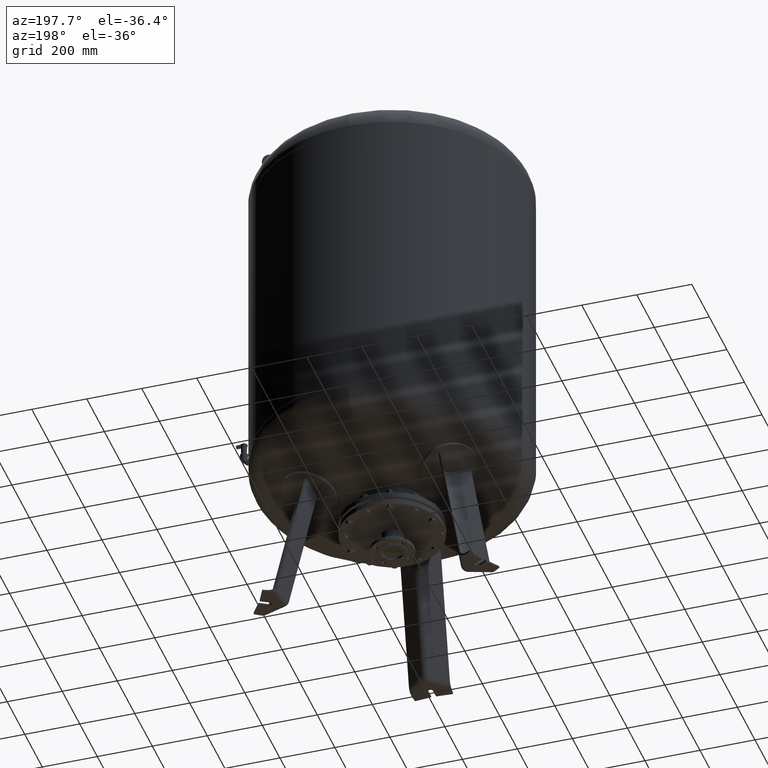
[diagram: clean part render]
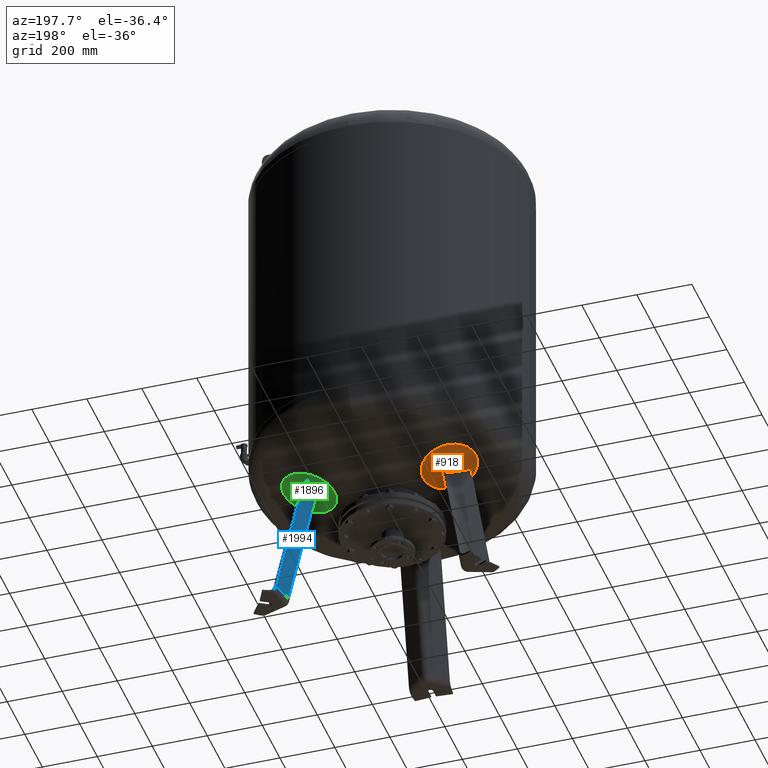
[diagram: same view with three faces highlighted in distinct colors, each labeled with its STEP entity id]
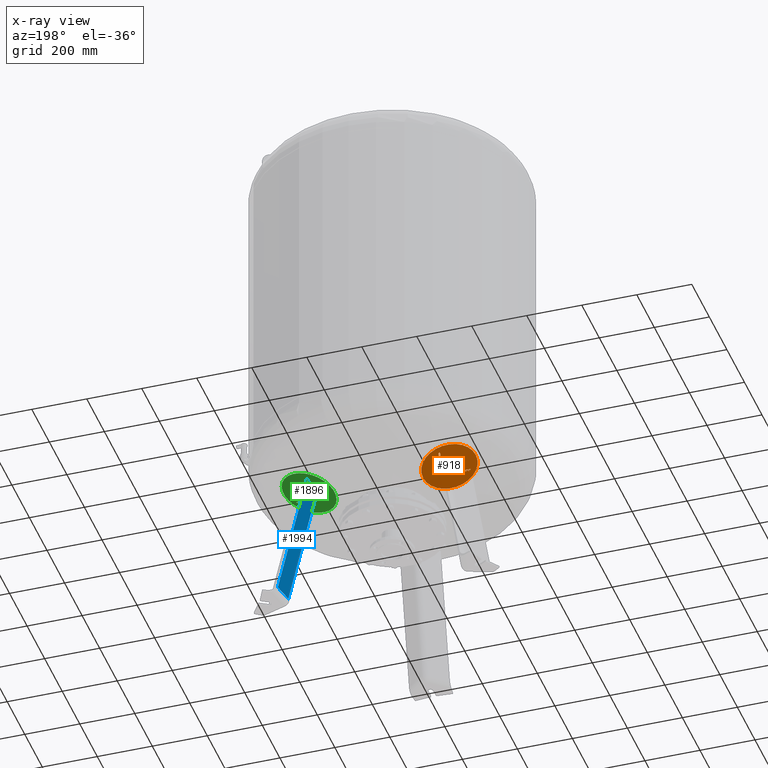
[diagram: x-ray of the same camera — body ghosted, the three highlighted faces saturated]
A machine part, auxiliary view with three faces highlighted in distinct colors.
The next image is the same camera in x-ray (body ghosted, the three faces saturated) — at least one of them is partly hidden behind the body in this view.
Their STEP definitions:

[orange] entity #918 — the highlighted spherical surface has radius 1006 mm.
#130=CARTESIAN_POINT('',(-172.796675749824520,99.764207259233771,469.158360530759300));
#131=VERTEX_POINT('',#130);
#140=CARTESIAN_POINT('',(-337.524496459090810,194.869858888749210,530.961759405748920));
#141=VERTEX_POINT('',#140);
#142=CARTESIAN_POINT('',(-255.160586104457740,147.317033073991520,500.060059968254170));
#143=DIRECTION('',(-0.267616567329818,0.154508497187474,-0.951056516295154));
#144=DIRECTION('',(0.823639103546332,-0.475528258147577,-0.309016994374948));
#145=AXIS2_PLACEMENT_3D('',#142,#143,#144);
#146=CIRCLE('',#145,100.0);
#147=EDGE_CURVE('',#141,#131,#146,.T.);
#767=CARTESIAN_POINT('',(12.728276363151110,-7.348673784585259,1452.084259496684100));
#768=DIRECTION('',(-0.500000000000000,-0.866025403784438,-1.922271E-017));
#769=DIRECTION('',(0.823639103546332,-0.475528258147577,-0.309016994374948));
#770=AXIS2_PLACEMENT_3D('',#767,#768,#769);
#771=SPHERICAL_SURFACE('',#770,1006.0);
#772=CARTESIAN_POINT('',(-255.160586104457740,147.317033073991520,500.060059968254170));
#773=DIRECTION('',(-0.267616567329818,0.154508497187474,-0.951056516295154));
#774=DIRECTION('',(0.823639103546332,-0.475528258147577,-0.309016994374948));
#775=AXIS2_PLACEMENT_3D('',#772,#773,#774);
#776=CIRCLE('',#775,100.0);
#777=EDGE_CURVE('',#131,#141,#776,.T.);
#778=ORIENTED_EDGE('',*,*,#777,.T.);
#779=ORIENTED_EDGE('',*,*,#147,.T.);
#780=EDGE_LOOP('',(#778,#779));
#781=FACE_OUTER_BOUND('',#780,.T.);
#782=CARTESIAN_POINT('',(-245.347396508302840,225.757308699770080,508.106215259451630));
#783=VERTEX_POINT('',#782);
#784=CARTESIAN_POINT('',(-239.084562163770500,222.906025895211830,505.718015578199410));
#785=VERTEX_POINT('',#784);
#786=CARTESIAN_POINT('',(48.462833693314167,69.785539066318478,1453.703955797395800));
#787=DIRECTION('',(-0.420282416002408,-0.907193365623647,-0.019049623818306));
#788=DIRECTION('',(0.009563295541659,0.016564113765950,-0.999817070025078));
#789=AXIS2_PLACEMENT_3D('',#786,#787,#788);
#790=CIRCLE('',#789,1002.400484439319300);
#791=EDGE_CURVE('',#783,#785,#790,.T.);
#792=ORIENTED_EDGE('',*,*,#791,.F.);
#793=CARTESIAN_POINT('',(-234.534818756953200,154.041509200619970,490.392952149244080));
#794=VERTEX_POINT('',#793);
#795=CARTESIAN_POINT('',(-42.678741161069638,-17.943416016653828,1461.157558058853700));
#796=DIRECTION('',(0.969740897595359,0.185430570007244,-0.158802063077708));
#797=DIRECTION('',(0.180056805991956,-0.103955845408880,0.978147600733806));
#798=AXIS2_PLACEMENT_3D('',#795,#796,#797);
#799=CIRCLE('',#798,1004.376169121564000);
#800=EDGE_CURVE('',#794,#783,#799,.T.);
#801=ORIENTED_EDGE('',*,*,#800,.F.);
#802=CARTESIAN_POINT('',(-250.671269583507720,126.092356515190720,490.392952149244080));
#803=VERTEX_POINT('',#802);
#804=CARTESIAN_POINT('',(-250.671269583507720,126.092356515190720,490.392952149244080));
#805=CARTESIAN_POINT('',(-250.574512849431670,126.129635010904860,490.371623892671440));
#806=CARTESIAN_POINT('',(-250.477803760298120,126.167593311050540,490.350420493468330));
#807=CARTESIAN_POINT('',(-249.646487369690620,126.499951411326890,490.169148601515130));
#808=CARTESIAN_POINT('',(-248.915641114720190,126.833074850677970,490.016489016976440));
#809=CARTESIAN_POINT('',(-247.476615436054400,127.576101824324410,489.730169035990510));
#810=CARTESIAN_POINT('',(-246.768360453599570,127.986039684162510,489.596492822823280));
#811=CARTESIAN_POINT('',(-245.388021940892060,128.877791467814290,489.351162059827520));
#812=CARTESIAN_POINT('',(-244.715937417979970,129.359603697571540,489.239506937421310));
#813=CARTESIAN_POINT('',(-243.419980240353990,130.387381409492890,489.040364541220580));
#814=CARTESIAN_POINT('',(-242.795522354690630,130.933811219726380,488.952787360993230));
#815=CARTESIAN_POINT('',(-241.604085802151560,132.081845711851540,488.802955942629920));
#816=CARTESIAN_POINT('',(-241.037108603185230,132.683452004905400,488.740702376916890));
#817=CARTESIAN_POINT('',(-239.968940744643450,133.929592684317130,488.641866930361120));
#818=CARTESIAN_POINT('',(-239.467698051638340,134.574194484351320,488.605281330539300));
#819=CARTESIAN_POINT('',(-238.536808190789320,135.892067462273190,488.557093949216380));
#820=CARTESIAN_POINT('',(-238.107165363452170,136.565341769891430,488.545493912186370));
#821=CARTESIAN_POINT('',(-237.714901647204130,137.244762456398800,488.545493912186370));
#822=CARTESIAN_POINT('',(-237.322637930956090,137.924183142906200,488.545493912186370));
#823=CARTESIAN_POINT('',(-236.954386690511880,138.632901899743080,488.557093949216380));
#824=CARTESIAN_POINT('',(-236.278520143095020,140.098012656324640,488.605281330539300));
#825=CARTESIAN_POINT('',(-235.970899955442750,140.854402461945480,488.641866930361120));
#826=CARTESIAN_POINT('',(-235.425794399653880,142.402533302654550,488.740702376916890));
#827=CARTESIAN_POINT('',(-235.188276666275870,143.194353106852840,488.802955942629920));
#828=CARTESIAN_POINT('',(-234.789767907944220,144.800184674411640,488.952787360993230));
#829=CARTESIAN_POINT('',(-234.628774753728610,145.614195972106390,489.040364541220580));
#830=CARTESIAN_POINT('',(-234.386671734574240,147.250416666107920,489.239506937421370));
#831=CARTESIAN_POINT('',(-234.305452365206490,148.073365051318770,489.351162059827520));
#832=CARTESIAN_POINT('',(-234.223341923047710,149.714649160971390,489.596492822823280));
#833=CARTESIAN_POINT('',(-234.222452813682340,150.532984898053170,489.730169035990630));
#834=CARTESIAN_POINT('',(-234.298485418140270,152.150731179299070,490.016489016976440));
#835=CARTESIAN_POINT('',(-234.375415184551600,152.950224322039820,490.169148601515020));
#836=CARTESIAN_POINT('',(-234.503242821862470,153.836344485026470,490.350420493468220));
#837=CARTESIAN_POINT('',(-234.518724514218490,153.939076163065810,490.371623892671440));
#838=CARTESIAN_POINT('',(-234.534818756953200,154.041509200619970,490.392952149244080));
#839=B_SPLINE_CURVE_WITH_KNOTS('',3,(#804,#805,#806,#807,#808,#809,#810,#811,#812,#813,#814,#815,#816,#817,#818,#819,#820,#821,#822,#823,#824,#825,#826,#827,#828,#829,#830,#831,#832,#833,#834,#835,#836,#837,#838),.UNSPECIFIED.,.F.,.U.,(4,2,2,2,2,2,2,2,3,2,2,2,2,2,2,2,4),(-16.784681571035506,-16.475076082417758,-14.121493784929527,-11.767911487441268,-9.414329189953008,-7.060746892464749,-4.707164594976490,-2.353582297488259,0.0,2.353582297488253,4.707164594976506,7.060746892464759,9.414329189953012,11.767911487441264,14.121493784929518,16.475076082417772,16.784681571035524),.UNSPECIFIED.);
#840=EDGE_CURVE('',#803,#794,#839,.T.);
#841=ORIENTED_EDGE('',*,*,#840,.F.);
#842=CARTESIAN_POINT('',(-318.185262678157870,99.598423778678864,508.106215259451630));
#843=VERTEX_POINT('',#842);
#844=CARTESIAN_POINT('',(-5.799916479440071,45.932582055353663,1461.157558058853700));
#845=DIRECTION('',(0.324282864533177,-0.932535537409927,-0.158802063077709));
#846=DIRECTION('',(0.180056805991956,-0.103955845408880,0.978147600733805));
#847=AXIS2_PLACEMENT_3D('',#844,#845,#846);
#848=CIRCLE('',#847,1004.376169121563900);
#849=EDGE_CURVE('',#843,#803,#848,.T.);
#850=ORIENTED_EDGE('',*,*,#849,.F.);
#851=CARTESIAN_POINT('',(-312.584562163770500,95.600291538899313,505.718015578199190));
#852=VERTEX_POINT('',#851);
#853=CARTESIAN_POINT('',(-36.204632801566220,-76.862814650949872,1453.703955797395800));
#854=DIRECTION('',(0.575511292773579,0.817571931833808,-0.019049623818306));
#855=DIRECTION('',(0.009563295541659,0.016564113765950,0.999817070025078));
#856=AXIS2_PLACEMENT_3D('',#853,#854,#855);
#857=CIRCLE('',#856,1002.400484439319300);
#858=EDGE_CURVE('',#852,#843,#857,.T.);
#859=ORIENTED_EDGE('',*,*,#858,.F.);
#860=CARTESIAN_POINT('',(-244.219129764969720,122.367211854108720,488.140371349142640));
#861=VERTEX_POINT('',#860);
#862=CARTESIAN_POINT('',(-3.878909333608021,40.408369625302470,1460.216836450315200));
#863=DIRECTION('',(-0.324282864533177,0.932535537409927,0.158802063077709));
#864=DIRECTION('',(-0.180056805991956,0.103955845408880,-0.978147600733805));
#865=AXIS2_PLACEMENT_3D('',#862,#863,#864);
#866=CIRCLE('',#865,1004.695639176399000);
#867=EDGE_CURVE('',#861,#852,#866,.T.);
#868=ORIENTED_EDGE('',*,*,#867,.F.);
#869=CARTESIAN_POINT('',(-228.082678938415260,150.316364539538030,488.140371349142640));
#870=VERTEX_POINT('',#869);
#871=CARTESIAN_POINT('',(-228.082678938415260,150.316364539538030,488.140371349142640));
#872=CARTESIAN_POINT('',(-228.066640468310600,150.214835707756720,488.119758337632730));
#873=CARTESIAN_POINT('',(-228.051203789349130,150.113014788072230,488.099264993121150));
#874=CARTESIAN_POINT('',(-227.922557904223480,149.227132373110580,487.922527930590210));
#875=CARTESIAN_POINT('',(-227.844838707869400,148.426996874095830,487.773524823873860));
#876=CARTESIAN_POINT('',(-227.767358921597320,146.808052609605110,487.494072222439000));
#877=CARTESIAN_POINT('',(-227.767590168543590,145.989161230529420,487.363607291874300));
#878=CARTESIAN_POINT('',(-227.848518487504580,144.346861174114850,487.124177053163460));
#879=CARTESIAN_POINT('',(-227.929213570494680,143.523452480935130,487.015211181380040));
#880=CARTESIAN_POINT('',(-228.170400469165880,141.886410818826680,486.820870060878350));
#881=CARTESIAN_POINT('',(-228.331001211407230,141.072039463819290,486.735407184319850));
#882=CARTESIAN_POINT('',(-228.728852706424080,139.465588881136090,486.589196233214520));
#883=CARTESIAN_POINT('',(-228.966105582964870,138.673510119873440,486.528448813028320));
#884=CARTESIAN_POINT('',(-229.510802448659630,137.124959111482840,486.432006304194660));
#885=CARTESIAN_POINT('',(-229.818278733375050,136.368408226318990,486.396307595334520));
#886=CARTESIAN_POINT('',(-230.493968779616270,134.903066767972970,486.349288981572390));
#887=CARTESIAN_POINT('',(-230.862187432638820,134.194278395694820,486.337970779564160));
#888=CARTESIAN_POINT('',(-231.254467641075540,133.514829143878730,486.337970779564160));
#889=CARTESIAN_POINT('',(-231.646747849512250,132.835379892062630,486.337970779564160));
#890=CARTESIAN_POINT('',(-232.076467259300870,132.162098998258730,486.349288981572390));
#891=CARTESIAN_POINT('',(-233.007645164326450,130.844263523956560,486.396307595334520));
#892=CARTESIAN_POINT('',(-233.509099307776350,130.199705807749870,486.432006304194540));
#893=CARTESIAN_POINT('',(-234.577835387251130,128.953708980501060,486.528448813028210));
#894=CARTESIAN_POINT('',(-235.145169278032310,128.352202581664470,486.589196233214520));
#895=CARTESIAN_POINT('',(-236.337470545051870,127.204427788704680,486.735407184319850));
#896=CARTESIAN_POINT('',(-236.962436455481850,126.658157788553310,486.820870060878290));
#897=CARTESIAN_POINT('',(-238.259562672585700,125.630762976189810,487.015211181379980));
#898=CARTESIAN_POINT('',(-238.932307977081340,125.149174637770130,487.124177053163520));
#899=CARTESIAN_POINT('',(-240.314117387092380,124.257938629457090,487.363607291874360));
#900=CARTESIAN_POINT('',(-241.023182500838860,123.848292674189210,487.494072222438890));
#901=CARTESIAN_POINT('',(-242.463969254335010,123.105920005135220,487.773524823873860));
#902=CARTESIAN_POINT('',(-243.195766521128580,122.773159054032190,487.922527930590210));
#903=CARTESIAN_POINT('',(-244.027286139814070,122.441628451162520,488.099264993121150));
#904=CARTESIAN_POINT('',(-244.123183982378270,122.404086547450870,488.119758337632730));
#905=CARTESIAN_POINT('',(-244.219129764969720,122.367211854108720,488.140371349142640));
#906=B_SPLINE_CURVE_WITH_KNOTS('',3,(#871,#872,#873,#874,#875,#876,#877,#878,#879,#880,#881,#882,#883,#884,#885,#886,#887,#888,#889,#890,#891,#892,#893,#894,#895,#896,#897,#898,#899,#900,#901,#902,#903,#904,#905),.UNSPECIFIED.,.F.,.U.,(4,2,2,2,2,2,2,2,3,2,2,2,2,2,2,2,4),(-16.782365627384145,-16.475768754341857,-14.122087503721616,-11.768406253101347,-9.414725002481077,-7.061043751860808,-4.707362501240539,-2.353681250620269,0.0,2.353681250620262,4.707362501240525,7.061043751860787,9.414725002481049,11.768406253101311,14.122087503721573,16.475768754341836,16.782365627384028),.UNSPECIFIED.);
#907=EDGE_CURVE('',#870,#861,#906,.T.);
#908=ORIENTED_EDGE('',*,*,#907,.F.);
#909=CARTESIAN_POINT('',(-36.934129287827545,-16.844950790770213,1460.216836450315200));
#910=DIRECTION('',(-0.969740897595359,-0.185430570007244,0.158802063077709));
#911=DIRECTION('',(-0.180056805991956,0.103955845408880,-0.978147600733806));
#912=AXIS2_PLACEMENT_3D('',#909,#910,#911);
#913=CIRCLE('',#912,1004.695639176398800);
#914=EDGE_CURVE('',#785,#870,#913,.T.);
#915=ORIENTED_EDGE('',*,*,#914,.F.);
#916=EDGE_LOOP('',(#792,#801,#841,#850,#859,#868,#908,#915));
#917=FACE_BOUND('',#916,.T.);
#918=ADVANCED_FACE('',(#781,#917),#771,.T.);

[blue] entity #1994 — the highlighted planar face has unit normal (-0.9697, 0.1854, -0.1588).
#1226=CARTESIAN_POINT('',(314.068076985219480,199.960057248237320,21.029948423057281));
#1227=VERTEX_POINT('',#1226);
#1268=CARTESIAN_POINT('',(328.305642099864600,274.417840413704650,21.029948423057284));
#1269=VERTEX_POINT('',#1268);
#1270=CARTESIAN_POINT('',(314.068076985219480,199.960057248237320,21.029948423057281));
#1271=DIRECTION('',(0.187813845079448,0.982204642422582,4.686537E-017));
#1272=VECTOR('',#1271,75.806792138366532);
#1273=LINE('',#1270,#1272);
#1274=EDGE_CURVE('',#1227,#1269,#1273,.T.);
#1829=CARTESIAN_POINT('',(239.084562163770580,222.906025895211770,505.718015578199190));
#1830=VERTEX_POINT('',#1829);
#1838=CARTESIAN_POINT('',(228.082678938415280,150.316364539537890,488.140371349142640));
#1839=VERTEX_POINT('',#1838);
#1840=CARTESIAN_POINT('',(36.934129287827375,-16.844950790769985,1460.216836450315200));
#1841=DIRECTION('',(0.969740897595359,-0.185430570007245,0.158802063077709));
#1842=DIRECTION('',(0.180056805991956,0.103955845408880,-0.978147600733805));
#1843=AXIS2_PLACEMENT_3D('',#1840,#1841,#1842);
#1844=CIRCLE('',#1843,1004.695639176399000);
#1845=EDGE_CURVE('',#1839,#1830,#1844,.T.);
#1964=CARTESIAN_POINT('',(328.305642099864600,274.417840413704650,21.029948423057284));
#1965=DIRECTION('',(-0.180056805991956,-0.103955845408880,0.978147600733806));
#1966=VECTOR('',#1965,495.516286899369050);
#1967=LINE('',#1964,#1966);
#1968=EDGE_CURVE('',#1269,#1830,#1967,.T.);
#1978=CARTESIAN_POINT('',(322.721292264436040,186.323224962095940,-47.735293817669401));
#1979=DIRECTION('',(-0.969740897595359,0.185430570007245,-0.158802063077709));
#1980=DIRECTION('',(0.180056805991956,0.103955845408880,-0.978147600733806));
#1981=AXIS2_PLACEMENT_3D('',#1978,#1979,#1980);
#1982=PLANE('',#1981);
#1983=CARTESIAN_POINT('',(228.082678938415280,150.316364539537890,488.140371349142640));
#1984=DIRECTION('',(0.180056805991956,0.103955845408880,-0.978147600733805));
#1985=VECTOR('',#1984,477.545947641909610);
#1986=LINE('',#1983,#1985);
#1987=EDGE_CURVE('',#1839,#1227,#1986,.T.);
#1988=ORIENTED_EDGE('',*,*,#1987,.F.);
#1989=ORIENTED_EDGE('',*,*,#1845,.T.);
#1990=ORIENTED_EDGE('',*,*,#1968,.F.);
#1991=ORIENTED_EDGE('',*,*,#1274,.F.);
#1992=EDGE_LOOP('',(#1988,#1989,#1990,#1991));
#1993=FACE_OUTER_BOUND('',#1992,.T.);
#1994=ADVANCED_FACE('',(#1993),#1982,.T.);

[green] entity #1896 — the highlighted spherical surface has radius 1006 mm.
#1108=CARTESIAN_POINT('',(172.796675749824570,99.764207259233743,469.158360530759300));
#1109=VERTEX_POINT('',#1108);
#1118=CARTESIAN_POINT('',(337.524496459090980,194.869858888748980,530.961759405748920));
#1119=VERTEX_POINT('',#1118);
#1120=CARTESIAN_POINT('',(255.160586104457880,147.317033073991410,500.060059968254170));
#1121=DIRECTION('',(0.267616567329818,0.154508497187474,-0.951056516295153));
#1122=DIRECTION('',(-0.823639103546332,-0.475528258147576,-0.309016994374948));
#1123=AXIS2_PLACEMENT_3D('',#1120,#1121,#1122);
#1124=CIRCLE('',#1123,100.0);
#1125=EDGE_CURVE('',#1119,#1109,#1124,.T.);
#1745=CARTESIAN_POINT('',(-12.728276363151167,-7.348673784585060,1452.084259496684100));
#1746=DIRECTION('',(-0.499999999999999,0.866025403784439,-1.922271E-017));
#1747=DIRECTION('',(-0.823639103546332,-0.475528258147576,-0.309016994374948));
#1748=AXIS2_PLACEMENT_3D('',#1745,#1746,#1747);
#1749=SPHERICAL_SURFACE('',#1748,1006.0);
#1750=CARTESIAN_POINT('',(255.160586104457880,147.317033073991410,500.060059968254170));
#1751=DIRECTION('',(0.267616567329818,0.154508497187474,-0.951056516295153));
#1752=DIRECTION('',(-0.823639103546332,-0.475528258147576,-0.309016994374948));
#1753=AXIS2_PLACEMENT_3D('',#1750,#1751,#1752);
#1754=CIRCLE('',#1753,100.0);
#1755=EDGE_CURVE('',#1109,#1119,#1754,.T.);
#1756=ORIENTED_EDGE('',*,*,#1755,.T.);
#1757=ORIENTED_EDGE('',*,*,#1125,.T.);
#1758=EDGE_LOOP('',(#1756,#1757));
#1759=FACE_OUTER_BOUND('',#1758,.T.);
#1760=CARTESIAN_POINT('',(318.185262678157930,99.598423778678807,508.106215259451630));
#1761=VERTEX_POINT('',#1760);
#1762=CARTESIAN_POINT('',(312.584562163770560,95.600291538899285,505.718015578199410));
#1763=VERTEX_POINT('',#1762);
#1764=CARTESIAN_POINT('',(36.204632801566049,-76.862814650949616,1453.703955797395800));
#1765=DIRECTION('',(-0.575511292773578,0.817571931833809,-0.019049623818306));
#1766=DIRECTION('',(0.009563295541659,-0.016564113765950,-0.999817070025078));
#1767=AXIS2_PLACEMENT_3D('',#1764,#1765,#1766);
#1768=CIRCLE('',#1767,1002.400484439319300);
#1769=EDGE_CURVE('',#1761,#1763,#1768,.T.);
#1770=ORIENTED_EDGE('',*,*,#1769,.F.);
#1771=CARTESIAN_POINT('',(250.671269583507810,126.092356515190690,490.392952149244080));
#1772=VERTEX_POINT('',#1771);
#1773=CARTESIAN_POINT('',(5.799916479440014,45.932582055354004,1461.157558058853700));
#1774=DIRECTION('',(-0.324282864533177,-0.932535537409926,-0.158802063077708));
#1775=DIRECTION('',(-0.180056805991956,-0.103955845408880,0.978147600733806));
#1776=AXIS2_PLACEMENT_3D('',#1773,#1774,#1775);
#1777=CIRCLE('',#1776,1004.376169121564000);
#1778=EDGE_CURVE('',#1772,#1761,#1777,.T.);
#1779=ORIENTED_EDGE('',*,*,#1778,.F.);
#1780=CARTESIAN_POINT('',(234.534818756953290,154.041509200619940,490.392952149244080));
#1781=VERTEX_POINT('',#1780);
#1782=CARTESIAN_POINT('',(234.534818756953290,154.041509200619940,490.392952149244080));
#1783=CARTESIAN_POINT('',(234.518724514218580,153.939076163065810,490.371623892671440));
#1784=CARTESIAN_POINT('',(234.503242821862440,153.836344485026420,490.350420493468330));
#1785=CARTESIAN_POINT('',(234.375415184551540,152.950224322039790,490.169148601515130));
#1786=CARTESIAN_POINT('',(234.298485418140390,152.150731179299100,490.016489016976440));
#1787=CARTESIAN_POINT('',(234.222452813682390,150.532984898053170,489.730169035990510));
#1788=CARTESIAN_POINT('',(234.223341923047800,149.714649160971360,489.596492822823280));
#1789=CARTESIAN_POINT('',(234.305452365206550,148.073365051318720,489.351162059827520));
#1790=CARTESIAN_POINT('',(234.386671734574320,147.250416666107900,489.239506937421310));
#1791=CARTESIAN_POINT('',(234.628774753728690,145.614195972106360,489.040364541220580));
#1792=CARTESIAN_POINT('',(234.789767907944310,144.800184674411610,488.952787360993230));
#1793=CARTESIAN_POINT('',(235.188276666275930,143.194353106852820,488.802955942629920));
#1794=CARTESIAN_POINT('',(235.425794399653970,142.402533302654490,488.740702376916890));
#1795=CARTESIAN_POINT('',(235.970899955442830,140.854402461945430,488.641866930361120));
#1796=CARTESIAN_POINT('',(236.278520143095110,140.098012656324610,488.605281330539300));
#1797=CARTESIAN_POINT('',(236.954386690511970,138.632901899743050,488.557093949216380));
#1798=CARTESIAN_POINT('',(237.322637930956150,137.924183142906170,488.545493912186370));
#1799=CARTESIAN_POINT('',(237.714901647204190,137.244762456398800,488.545493912186370));
#1800=CARTESIAN_POINT('',(238.107165363452220,136.565341769891400,488.545493912186370));
#1801=CARTESIAN_POINT('',(238.536808190789400,135.892067462273160,488.557093949216380));
#1802=CARTESIAN_POINT('',(239.467698051638420,134.574194484351300,488.605281330539300));
#1803=CARTESIAN_POINT('',(239.968940744643530,133.929592684317070,488.641866930361120));
#1804=CARTESIAN_POINT('',(241.037108603185320,132.683452004905350,488.740702376916890));
#1805=CARTESIAN_POINT('',(241.604085802151620,132.081845711851510,488.802955942629920));
#1806=CARTESIAN_POINT('',(242.795522354690720,130.933811219726350,488.952787360993230));
#1807=CARTESIAN_POINT('',(243.419980240354080,130.387381409492860,489.040364541220580));
#1808=CARTESIAN_POINT('',(244.715937417980060,129.359603697571520,489.239506937421370));
#1809=CARTESIAN_POINT('',(245.388021940892120,128.877791467814230,489.351162059827520));
#1810=CARTESIAN_POINT('',(246.768360453599660,127.986039684162480,489.596492822823280));
#1811=CARTESIAN_POINT('',(247.476615436054460,127.576101824324410,489.730169035990630));
#1812=CARTESIAN_POINT('',(248.915641114720190,126.833074850677950,490.016489016976440));
#1813=CARTESIAN_POINT('',(249.646487369690790,126.499951411326980,490.169148601515020));
#1814=CARTESIAN_POINT('',(250.477803760298260,126.167593311050620,490.350420493468220));
#1815=CARTESIAN_POINT('',(250.574512849431760,126.129635010904830,490.371623892671440));
#1816=CARTESIAN_POINT('',(250.671269583507810,126.092356515190690,490.392952149244080));
#1817=B_SPLINE_CURVE_WITH_KNOTS('',3,(#1782,#1783,#1784,#1785,#1786,#1787,#1788,#1789,#1790,#1791,#1792,#1793,#1794,#1795,#1796,#1797,#1798,#1799,#1800,#1801,#1802,#1803,#1804,#1805,#1806,#1807,#1808,#1809,#1810,#1811,#1812,#1813,#1814,#1815,#1816),.UNSPECIFIED.,.F.,.U.,(4,2,2,2,2,2,2,2,3,2,2,2,2,2,2,2,4),(-16.784681571035506,-16.475076082417758,-14.121493784929527,-11.767911487441268,-9.414329189953008,-7.060746892464749,-4.707164594976490,-2.353582297488259,0.0,2.353582297488253,4.707164594976506,7.060746892464759,9.414329189953012,11.767911487441264,14.121493784929518,16.475076082417772,16.784681571035524),.UNSPECIFIED.);
#1818=EDGE_CURVE('',#1781,#1772,#1817,.T.);
#1819=ORIENTED_EDGE('',*,*,#1818,.F.);
#1820=CARTESIAN_POINT('',(245.347396508302920,225.757308699770020,508.106215259451630));
#1821=VERTEX_POINT('',#1820);
#1822=CARTESIAN_POINT('',(42.678741161069468,-17.943416016653600,1461.157558058853700));
#1823=DIRECTION('',(-0.969740897595359,0.185430570007245,-0.158802063077709));
#1824=DIRECTION('',(-0.180056805991956,-0.103955845408880,0.978147600733805));
#1825=AXIS2_PLACEMENT_3D('',#1822,#1823,#1824);
#1826=CIRCLE('',#1825,1004.376169121563900);
#1827=EDGE_CURVE('',#1821,#1781,#1826,.T.);
#1828=ORIENTED_EDGE('',*,*,#1827,.F.);
#1829=CARTESIAN_POINT('',(239.084562163770580,222.906025895211770,505.718015578199190));
#1830=VERTEX_POINT('',#1829);
#1831=CARTESIAN_POINT('',(-48.462833693314224,69.785539066318819,1453.703955797395800));
#1832=DIRECTION('',(0.420282416002407,-0.907193365623647,-0.019049623818306));
#1833=DIRECTION('',(0.009563295541659,-0.016564113765950,0.999817070025078));
#1834=AXIS2_PLACEMENT_3D('',#1831,#1832,#1833);
#1835=CIRCLE('',#1834,1002.400484439319300);
#1836=EDGE_CURVE('',#1830,#1821,#1835,.T.);
#1837=ORIENTED_EDGE('',*,*,#1836,.F.);
#1838=CARTESIAN_POINT('',(228.082678938415280,150.316364539537890,488.140371349142640));
#1839=VERTEX_POINT('',#1838);
#1840=CARTESIAN_POINT('',(36.934129287827375,-16.844950790769985,1460.216836450315200));
#1841=DIRECTION('',(0.969740897595359,-0.185430570007245,0.158802063077709));
#1842=DIRECTION('',(0.180056805991956,0.103955845408880,-0.978147600733805));
#1843=AXIS2_PLACEMENT_3D('',#1840,#1841,#1842);
#1844=CIRCLE('',#1843,1004.695639176399000);
#1845=EDGE_CURVE('',#1839,#1830,#1844,.T.);
#1846=ORIENTED_EDGE('',*,*,#1845,.F.);
#1847=CARTESIAN_POINT('',(244.219129764969920,122.367211854108690,488.140371349142640));
#1848=VERTEX_POINT('',#1847);
#1849=CARTESIAN_POINT('',(244.219129764969920,122.367211854108690,488.140371349142640));
#1850=CARTESIAN_POINT('',(244.123183982378410,122.404086547450850,488.119758337632730));
#1851=CARTESIAN_POINT('',(244.027286139814180,122.441628451162400,488.099264993121150));
#1852=CARTESIAN_POINT('',(243.195766521128690,122.773159054032090,487.922527930590210));
#1853=CARTESIAN_POINT('',(242.463969254335130,123.105920005135090,487.773524823873860));
#1854=CARTESIAN_POINT('',(241.023182500839000,123.848292674189070,487.494072222439000));
#1855=CARTESIAN_POINT('',(240.314117387092520,124.257938629456940,487.363607291874300));
#1856=CARTESIAN_POINT('',(238.932307977081390,125.149174637769970,487.124177053163460));
#1857=CARTESIAN_POINT('',(238.259562672585870,125.630762976189760,487.015211181380040));
#1858=CARTESIAN_POINT('',(236.962436455482020,126.658157788553250,486.820870060878350));
#1859=CARTESIAN_POINT('',(236.337470545051990,127.204427788704590,486.735407184319850));
#1860=CARTESIAN_POINT('',(235.145169278032400,128.352202581664390,486.589196233214520));
#1861=CARTESIAN_POINT('',(234.577835387251240,128.953708980500980,486.528448813028320));
#1862=CARTESIAN_POINT('',(233.509099307776320,130.199705807749690,486.432006304194660));
#1863=CARTESIAN_POINT('',(233.007645164326560,130.844263523956440,486.396307595334520));
#1864=CARTESIAN_POINT('',(232.076467259300980,132.162098998258610,486.349288981572390));
#1865=CARTESIAN_POINT('',(231.646747849512370,132.835379892062520,486.337970779564160));
#1866=CARTESIAN_POINT('',(231.254467641075650,133.514829143878610,486.337970779564160));
#1867=CARTESIAN_POINT('',(230.862187432638930,134.194278395694710,486.337970779564160));
#1868=CARTESIAN_POINT('',(230.493968779616380,134.903066767972860,486.349288981572390));
#1869=CARTESIAN_POINT('',(229.818278733375170,136.368408226318880,486.396307595334520));
#1870=CARTESIAN_POINT('',(229.510802448659830,137.124959111482780,486.432006304194540));
#1871=CARTESIAN_POINT('',(228.966105582964990,138.673510119873360,486.528448813028210));
#1872=CARTESIAN_POINT('',(228.728852706424160,139.465588881136000,486.589196233214520));
#1873=CARTESIAN_POINT('',(228.331001211407340,141.072039463819240,486.735407184319850));
#1874=CARTESIAN_POINT('',(228.170400469165940,141.886410818826560,486.820870060878290));
#1875=CARTESIAN_POINT('',(227.929213570494740,143.523452480935020,487.015211181379980));
#1876=CARTESIAN_POINT('',(227.848518487504750,144.346861174114760,487.124177053163520));
#1877=CARTESIAN_POINT('',(227.767590168543730,145.989161230529250,487.363607291874360));
#1878=CARTESIAN_POINT('',(227.767358921597460,146.808052609604940,487.494072222438890));
#1879=CARTESIAN_POINT('',(227.844838707869510,148.426996874095720,487.773524823873860));
#1880=CARTESIAN_POINT('',(227.922557904223590,149.227132373110460,487.922527930590210));
#1881=CARTESIAN_POINT('',(228.051203789349240,150.113014788072120,488.099264993121150));
#1882=CARTESIAN_POINT('',(228.066640468310620,150.214835707756630,488.119758337632730));
#1883=CARTESIAN_POINT('',(228.082678938415280,150.316364539537890,488.140371349142640));
#1884=B_SPLINE_CURVE_WITH_KNOTS('',3,(#1849,#1850,#1851,#1852,#1853,#1854,#1855,#1856,#1857,#1858,#1859,#1860,#1861,#1862,#1863,#1864,#1865,#1866,#1867,#1868,#1869,#1870,#1871,#1872,#1873,#1874,#1875,#1876,#1877,#1878,#1879,#1880,#1881,#1882,#1883),.UNSPECIFIED.,.F.,.U.,(4,2,2,2,2,2,2,2,3,2,2,2,2,2,2,2,4),(-16.782365627384145,-16.475768754341857,-14.122087503721616,-11.768406253101347,-9.414725002481077,-7.061043751860808,-4.707362501240539,-2.353681250620269,0.0,2.353681250620262,4.707362501240525,7.061043751860787,9.414725002481049,11.768406253101311,14.122087503721573,16.475768754341836,16.782365627384028),.UNSPECIFIED.);
#1885=EDGE_CURVE('',#1848,#1839,#1884,.T.);
#1886=ORIENTED_EDGE('',*,*,#1885,.F.);
#1887=CARTESIAN_POINT('',(3.878909333607965,40.408369625302811,1460.216836450315200));
#1888=DIRECTION('',(0.324282864533178,0.932535537409926,0.158802063077709));
#1889=DIRECTION('',(0.180056805991956,0.103955845408880,-0.978147600733806));
#1890=AXIS2_PLACEMENT_3D('',#1887,#1888,#1889);
#1891=CIRCLE('',#1890,1004.695639176398800);
#1892=EDGE_CURVE('',#1763,#1848,#1891,.T.);
#1893=ORIENTED_EDGE('',*,*,#1892,.F.);
#1894=EDGE_LOOP('',(#1770,#1779,#1819,#1828,#1837,#1846,#1886,#1893));
#1895=FACE_BOUND('',#1894,.T.);
#1896=ADVANCED_FACE('',(#1759,#1895),#1749,.T.);